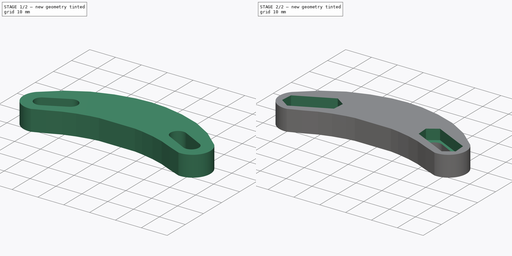
[diagram: build sequence overview — one tinted view per stage of 2, left to right]
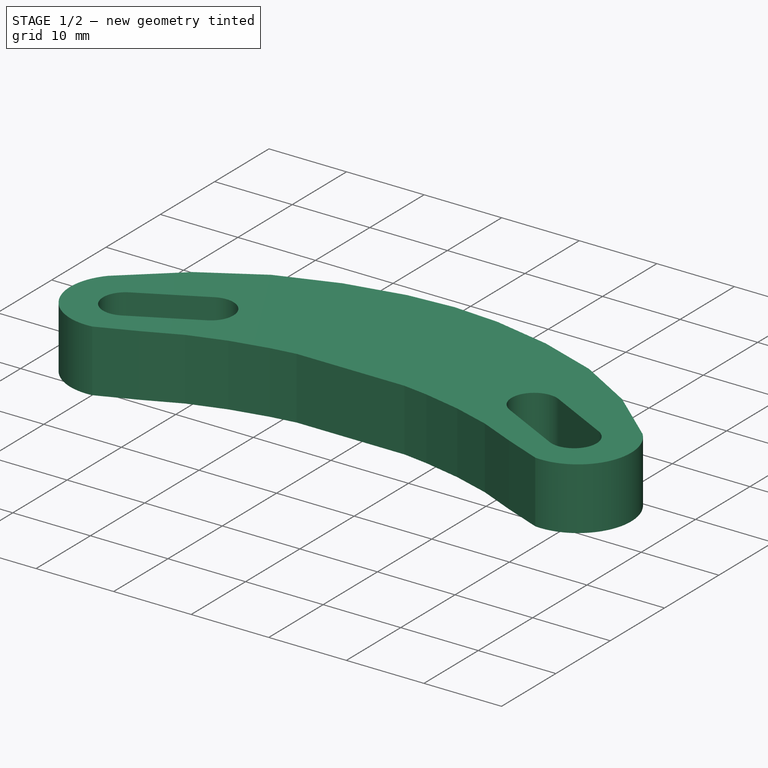
[diagram: stage 1 of 2 — iso view after this stage's code; geometry added in this stage tinted green]
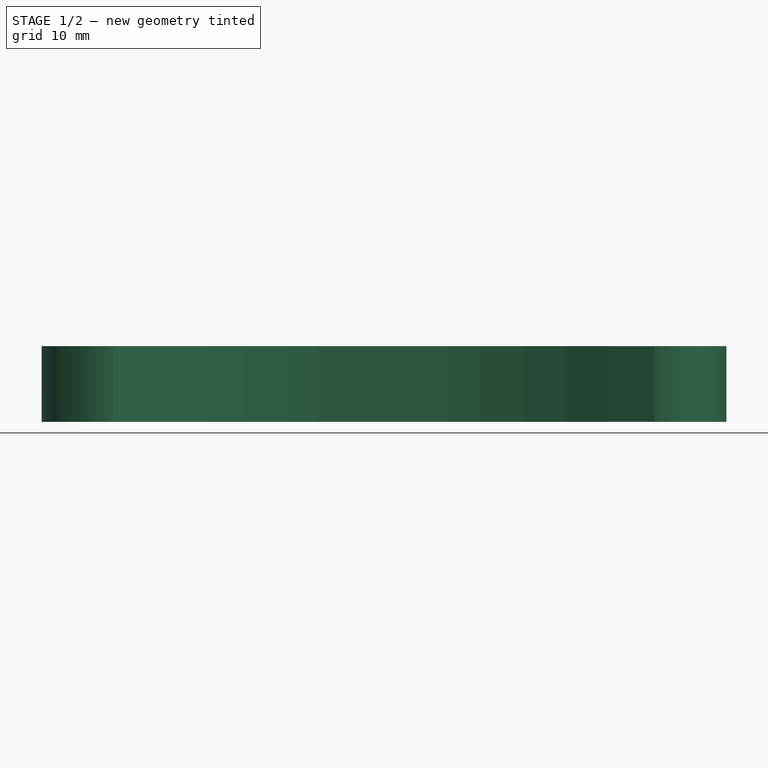
[diagram: stage 1 of 2 — front view after this stage's code; geometry added in this stage tinted green]
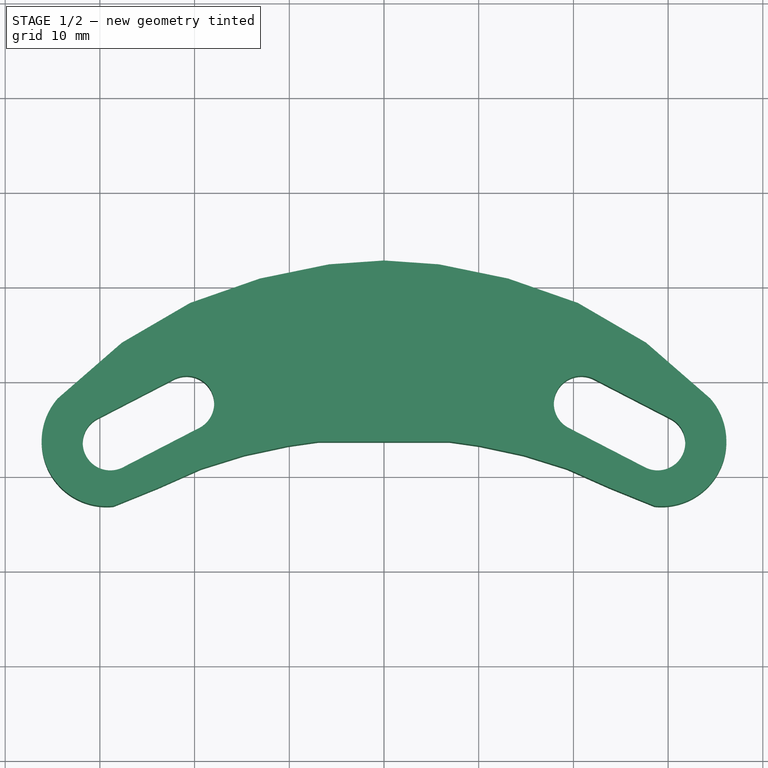
[diagram: stage 1 of 2 — top view after this stage's code; geometry added in this stage tinted green]
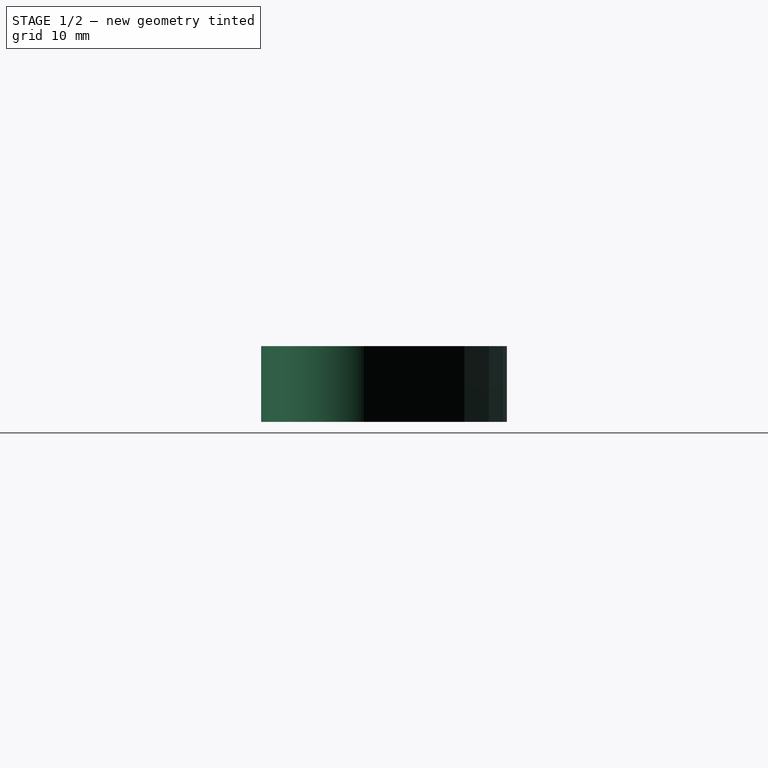
[diagram: stage 1 of 2 — right view after this stage's code; geometry added in this stage tinted green]
FCSTD DOCUMENT  (FreeCAD 0.17R13541 (Git))
Label: FrontLightMagnetBackSide
License: All rights reserved
LicenseURL: http://en.wikipedia.org/wiki/All_rights_reserved
objects: Sketcher::SketchObject×6, Image::ImagePlane×1, PartDesign::Pad×1, PartDesign::Pocket×1, PartDesign::Body×1
note: 11 computed .brp shape members not serialized (recipe doc carries the construction recipe); baked Part::Feature solids carry a one-line shape summary decoded from their .brp

FEATURE [Image::ImagePlane] ImagePlane
  Placement = pos=(0,0,-1) rot=(0,0,1;0rad)
  XSize = 80
  YSize = 32.5234
  expr: YSize = XSize * 87 / 214
FEATURE [Sketcher::SketchObject] Sketch
  MapMode = 5
  Support = -> [XY_Plane]
  sketch-geometry (16):
    g0: ArcOfCircle CenterX=-29.2914 CenterY=-6.3406 CenterZ=0 NormalX=0 NormalY=0 NormalZ=1 AngleXU=0 Radius=6.85887 StartAngle=2.4216 EndAngle=4.81914
    g1: LineSegment StartX=-34.4479 StartY=-1.81802 StartZ=0 EndX=-27.675 EndY=4.0719 EndZ=0
    g2: LineSegment StartX=-27.675 StartY=4.0719 StartZ=0 EndX=-20.4785 EndY=8.26511 EndZ=0
    g3: LineSegment StartX=-20.4785 StartY=8.26511 StartZ=0 EndX=-13.1121 EndY=10.8434 EndZ=0
    g4: LineSegment StartX=-13.1121 StartY=10.8434 StartZ=0 EndX=-5.80231 EndY=12.345 EndZ=0
    g5: LineSegment StartX=-5.80231 StartY=12.345 StartZ=0 EndX=0 EndY=12.7514 EndZ=0
    g6: LineSegment StartX=-28.5605 StartY=-13.1604 StartZ=0 EndX=-23.8379 EndY=-11.2462 EndZ=0
    g7: LineSegment StartX=-23.8379 StartY=-11.2462 StartZ=0 EndX=-19.3047 EndY=-9.23463 EndZ=0
    g8: LineSegment StartX=-19.3047 StartY=-9.23463 StartZ=0 EndX=-14.7432 EndY=-7.818 EndZ=0
    g9: LineSegment StartX=-14.7432 StartY=-7.818 StartZ=0 EndX=-10.0966 EndY=-6.82637 EndZ=0
    g10: LineSegment StartX=-10.0966 StartY=-6.82637 StartZ=0 EndX=-6.95172 EndY=-6.37305 EndZ=0
    g11: LineSegment StartX=-6.95172 StartY=-6.37305 StartZ=0 EndX=0 EndY=-6.37305 EndZ=0
    g12: ArcOfCircle CenterX=-20.8441 CenterY=-2.3434 CenterZ=0 NormalX=0 NormalY=0 NormalZ=1 AngleXU=0 Radius=2.91319 StartAngle=5.1892 EndAngle=8.33079
    g13: ArcOfCircle CenterX=-28.8963 CenterY=-6.50281 CenterZ=0 NormalX=0 NormalY=0 NormalZ=1 AngleXU=0 Radius=2.91319 StartAngle=2.0476 EndAngle=5.1892
    g14: LineSegment StartX=-22.1811 StartY=0.244864 StartZ=0 EndX=-30.2333 EndY=-3.91455 EndZ=0
    g15: LineSegment StartX=-19.5071 StartY=-4.93166 StartZ=0 EndX=-27.5593 EndY=-9.09107 EndZ=0
  constraints (19):
    c: Coincident(g0,g1)
    c: Coincident(g1,g2)
    c: Coincident(g2,g3)
    c: Coincident(g3,g4)
    c: Coincident(g4,g5)
    c: Coincident(g0,g6)
    c: Coincident(g6,g7)
    c: Coincident(g7,g8)
    c: Coincident(g8,g9)
    c: Coincident(g9,g10)
    c: Coincident(g10,g11)
    c: PointOnObject(g11,g-2)
    c: Horizontal(g11)
    c: PointOnObject(g5,g-2)
    c: Tangent(g12,g15) = 1.5708
    c: Tangent(g12,g14) = -1.5708
    c: Tangent(g14,g13) = -1.5708
    c: Tangent(g15,g13) = 1.5708
    c: Equal(g12,g13)
FEATURE [Sketcher::SketchObject] MirroredSketch
  sketch-geometry (16):
    g0: ArcOfCircle CenterX=29.2914 CenterY=-6.3406 CenterZ=0 NormalX=0 NormalY=0 NormalZ=1 AngleXU=0 Radius=6.85887 StartAngle=4.60564 EndAngle=7.00317
    g1: LineSegment StartX=34.4479 StartY=-1.81802 StartZ=0 EndX=27.675 EndY=4.0719 EndZ=0
    g2: LineSegment StartX=27.675 StartY=4.0719 StartZ=0 EndX=20.4785 EndY=8.26511 EndZ=0
    g3: LineSegment StartX=20.4785 StartY=8.26511 StartZ=0 EndX=13.1121 EndY=10.8434 EndZ=0
    g4: LineSegment StartX=13.1121 StartY=10.8434 StartZ=0 EndX=5.80231 EndY=12.345 EndZ=0
    g5: LineSegment StartX=5.80231 StartY=12.345 StartZ=0 EndX=0 EndY=12.7514 EndZ=0
    g6: LineSegment StartX=28.5605 StartY=-13.1604 StartZ=0 EndX=23.8379 EndY=-11.2462 EndZ=0
    g7: LineSegment StartX=23.8379 StartY=-11.2462 StartZ=0 EndX=19.3047 EndY=-9.23463 EndZ=0
    g8: LineSegment StartX=19.3047 StartY=-9.23463 StartZ=0 EndX=14.7432 EndY=-7.818 EndZ=0
    g9: LineSegment StartX=14.7432 StartY=-7.818 StartZ=0 EndX=10.0966 EndY=-6.82637 EndZ=0
    g10: LineSegment StartX=10.0966 StartY=-6.82637 StartZ=0 EndX=6.95172 EndY=-6.37305 EndZ=0
    g11: LineSegment StartX=6.95172 StartY=-6.37305 StartZ=0 EndX=0 EndY=-6.37305 EndZ=0
    g12: ArcOfCircle CenterX=20.8441 CenterY=-2.3434 CenterZ=0 NormalX=0 NormalY=0 NormalZ=1 AngleXU=0 Radius=2.91319 StartAngle=1.09399 EndAngle=4.23558
    g13: ArcOfCircle CenterX=28.8963 CenterY=-6.50281 CenterZ=0 NormalX=0 NormalY=0 NormalZ=1 AngleXU=0 Radius=2.91319 StartAngle=4.23558 EndAngle=7.37717
    g14: LineSegment StartX=22.1811 StartY=0.244864 StartZ=0 EndX=30.2333 EndY=-3.91455 EndZ=0
    g15: LineSegment StartX=19.5071 StartY=-4.93166 StartZ=0 EndX=27.5593 EndY=-9.09107 EndZ=0
  constraints (17):
    c: Coincident(g0,g1)
    c: Coincident(g1,g2)
    c: Coincident(g2,g3)
    c: Coincident(g3,g4)
    c: Coincident(g4,g5)
    c: Coincident(g0,g6)
    c: Coincident(g6,g7)
    c: Coincident(g7,g8)
    c: Coincident(g8,g9)
    c: Coincident(g9,g10)
    c: Coincident(g10,g11)
    c: Horizontal(g11)
    c: Tangent(g12,g15) = -1.5708
    c: Tangent(g12,g14) = 1.5708
    c: Tangent(g14,g13) = 1.5708
    c: Tangent(g15,g13) = -1.5708
    c: Equal(g12,g13)
FEATURE [Sketcher::SketchObject] Sketch001
  sketch-geometry (32):
    g0: ArcOfCircle CenterX=-29.2914 CenterY=-6.3406 CenterZ=0 NormalX=0 NormalY=0 NormalZ=1 AngleXU=0 Radius=6.85887 StartAngle=2.4216 EndAngle=4.81914
    g1: LineSegment StartX=-34.4479 StartY=-1.81802 StartZ=0 EndX=-27.675 EndY=4.0719 EndZ=0
    g2: LineSegment StartX=-27.675 StartY=4.0719 StartZ=0 EndX=-20.4785 EndY=8.26511 EndZ=0
    g3: LineSegment StartX=-20.4785 StartY=8.26511 StartZ=0 EndX=-13.1121 EndY=10.8434 EndZ=0
    g4: LineSegment StartX=-13.1121 StartY=10.8434 StartZ=0 EndX=-5.80231 EndY=12.345 EndZ=0
    g5: LineSegment StartX=-5.80231 StartY=12.345 StartZ=0 EndX=0 EndY=12.7514 EndZ=0
    g6: LineSegment StartX=-28.5605 StartY=-13.1604 StartZ=0 EndX=-23.8379 EndY=-11.2462 EndZ=0
    g7: LineSegment StartX=-23.8379 StartY=-11.2462 StartZ=0 EndX=-19.3047 EndY=-9.23463 EndZ=0
    g8: LineSegment StartX=-19.3047 StartY=-9.23463 StartZ=0 EndX=-14.7432 EndY=-7.818 EndZ=0
    g9: LineSegment StartX=-14.7432 StartY=-7.818 StartZ=0 EndX=-10.0966 EndY=-6.82637 EndZ=0
    g10: LineSegment StartX=-10.0966 StartY=-6.82637 StartZ=0 EndX=-6.95172 EndY=-6.37305 EndZ=0
    g11: LineSegment StartX=-6.95172 StartY=-6.37305 StartZ=0 EndX=0 EndY=-6.37305 EndZ=0
    g12: ArcOfCircle CenterX=-20.8441 CenterY=-2.3434 CenterZ=0 NormalX=0 NormalY=0 NormalZ=1 AngleXU=0 Radius=2.91319 StartAngle=5.1892 EndAngle=8.33079
    g13: ArcOfCircle CenterX=-28.8963 CenterY=-6.50281 CenterZ=0 NormalX=0 NormalY=0 NormalZ=1 AngleXU=0 Radius=2.91319 StartAngle=2.0476 EndAngle=5.1892
    g14: LineSegment StartX=-22.1811 StartY=0.244864 StartZ=0 EndX=-30.2333 EndY=-3.91455 EndZ=0
    g15: LineSegment StartX=-19.5071 StartY=-4.93166 StartZ=0 EndX=-27.5593 EndY=-9.09107 EndZ=0
    g16: ArcOfCircle CenterX=29.2914 CenterY=-6.3406 CenterZ=0 NormalX=0 NormalY=0 NormalZ=1 AngleXU=0 Radius=6.85887 StartAngle=4.60564 EndAngle=7.00317
    g17: LineSegment StartX=34.4479 StartY=-1.81802 StartZ=0 EndX=27.675 EndY=4.0719 EndZ=0
    g18: LineSegment StartX=27.675 StartY=4.0719 StartZ=0 EndX=20.4785 EndY=8.26511 EndZ=0
    g19: LineSegment StartX=20.4785 StartY=8.26511 StartZ=0 EndX=13.1121 EndY=10.8434 EndZ=0
    g20: LineSegment StartX=13.1121 StartY=10.8434 StartZ=0 EndX=5.80231 EndY=12.345 EndZ=0
    g21: LineSegment StartX=5.80231 StartY=12.345 StartZ=0 EndX=0 EndY=12.7514 EndZ=0
    g22: LineSegment StartX=28.5605 StartY=-13.1604 StartZ=0 EndX=23.8379 EndY=-11.2462 EndZ=0
    g23: LineSegment StartX=23.8379 StartY=-11.2462 StartZ=0 EndX=19.3047 EndY=-9.23463 EndZ=0
    g24: LineSegment StartX=19.3047 StartY=-9.23463 StartZ=0 EndX=14.7432 EndY=-7.818 EndZ=0
    g25: LineSegment StartX=14.7432 StartY=-7.818 StartZ=0 EndX=10.0966 EndY=-6.82637 EndZ=0
    g26: LineSegment StartX=10.0966 StartY=-6.82637 StartZ=0 EndX=6.95172 EndY=-6.37305 EndZ=0
    g27: LineSegment StartX=6.95172 StartY=-6.37305 StartZ=0 EndX=0 EndY=-6.37305 EndZ=0
    g28: ArcOfCircle CenterX=20.8441 CenterY=-2.3434 CenterZ=0 NormalX=0 NormalY=0 NormalZ=1 AngleXU=0 Radius=2.91319 StartAngle=1.09399 EndAngle=4.23558
    g29: ArcOfCircle CenterX=28.8963 CenterY=-6.50281 CenterZ=0 NormalX=0 NormalY=0 NormalZ=1 AngleXU=0 Radius=2.91319 StartAngle=4.23558 EndAngle=7.37717
    g30: LineSegment StartX=22.1811 StartY=0.244864 StartZ=0 EndX=30.2333 EndY=-3.91455 EndZ=0
    g31: LineSegment StartX=19.5071 StartY=-4.93166 StartZ=0 EndX=27.5593 EndY=-9.09107 EndZ=0
  constraints (36):
    c: Coincident(g0,g1)
    c: Coincident(g1,g2)
    c: Coincident(g2,g3)
    c: Coincident(g3,g4)
    c: Coincident(g4,g5)
    c: Coincident(g0,g6)
    c: Coincident(g6,g7)
    c: Coincident(g7,g8)
    c: Coincident(g8,g9)
    c: Coincident(g9,g10)
    c: Coincident(g10,g11)
    c: PointOnObject(g11,g-2)
    c: Horizontal(g11)
    c: PointOnObject(g5,g-2)
    c: Tangent(g12,g15) = 1.5708
    c: Tangent(g12,g14) = -1.5708
    c: Tangent(g14,g13) = -1.5708
    c: Tangent(g15,g13) = 1.5708
    c: Equal(g12,g13)
    c: Coincident(g16,g17)
    c: Coincident(g17,g18)
    c: Coincident(g18,g19)
    c: Coincident(g19,g20)
    c: Coincident(g20,g21)
    c: Coincident(g16,g22)
    c: Coincident(g22,g23)
    c: Coincident(g23,g24)
    c: Coincident(g24,g25)
    c: Coincident(g25,g26)
    c: Coincident(g26,g27)
    c: Horizontal(g27)
    c: Tangent(g28,g31) = -1.5708
    c: Tangent(g28,g30) = 1.5708
    c: Tangent(g30,g29) = 1.5708
    c: Tangent(g31,g29) = -1.5708
    c: Equal(g28,g29)
FEATURE [PartDesign::Pad] Pad
  Length = 8
  Length2 = 100
  Profile = -> Sketch001
  Type = 0
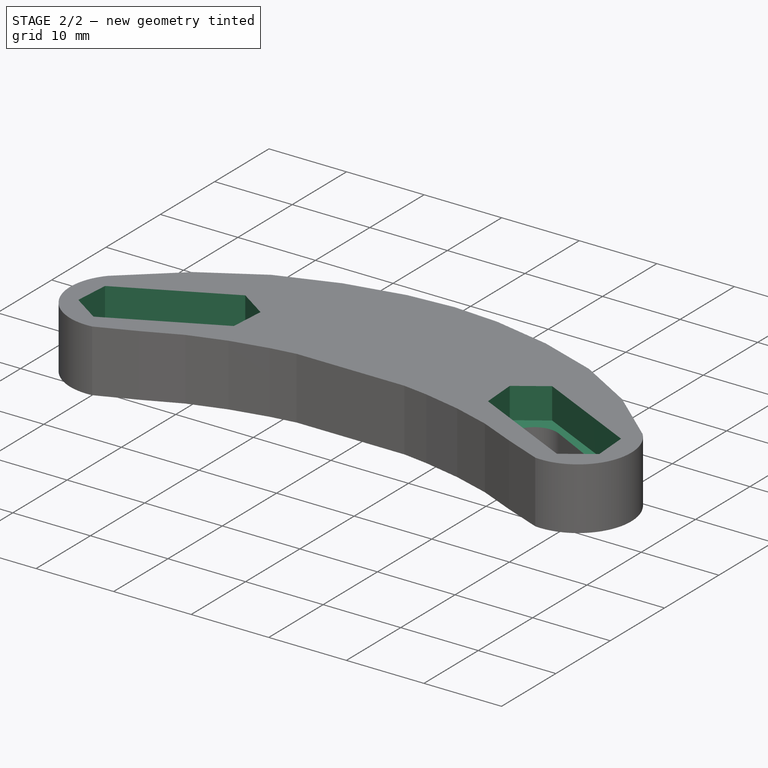
[diagram: stage 2 of 2 — iso view after this stage's code; geometry added in this stage tinted green]
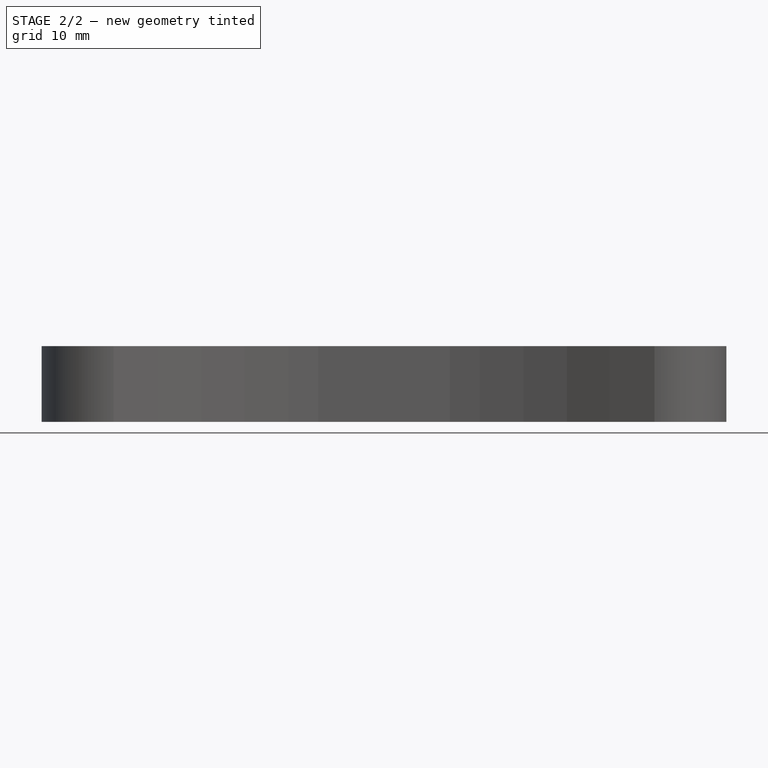
[diagram: stage 2 of 2 — front view after this stage's code; geometry added in this stage tinted green]
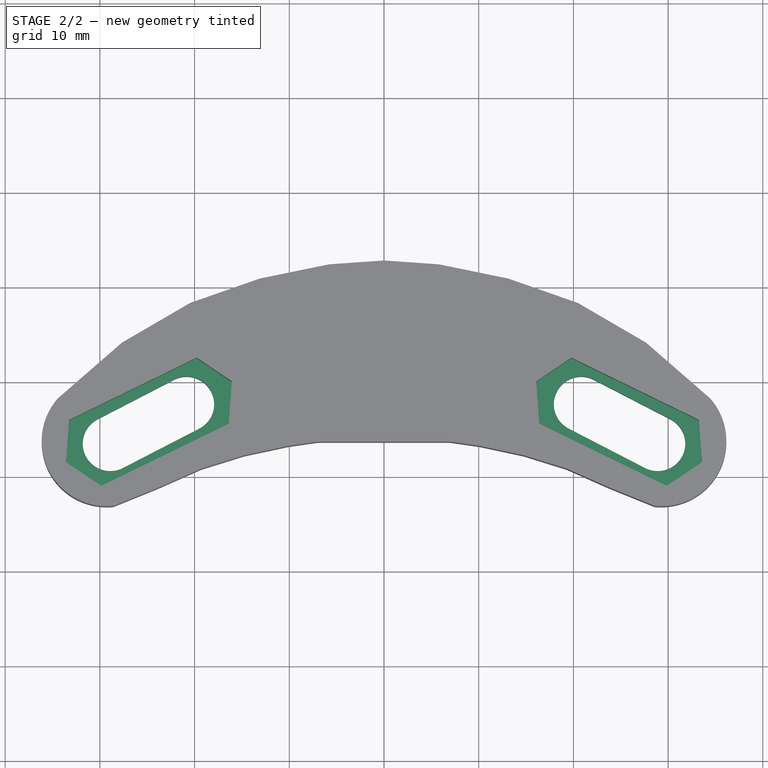
[diagram: stage 2 of 2 — top view after this stage's code; geometry added in this stage tinted green]
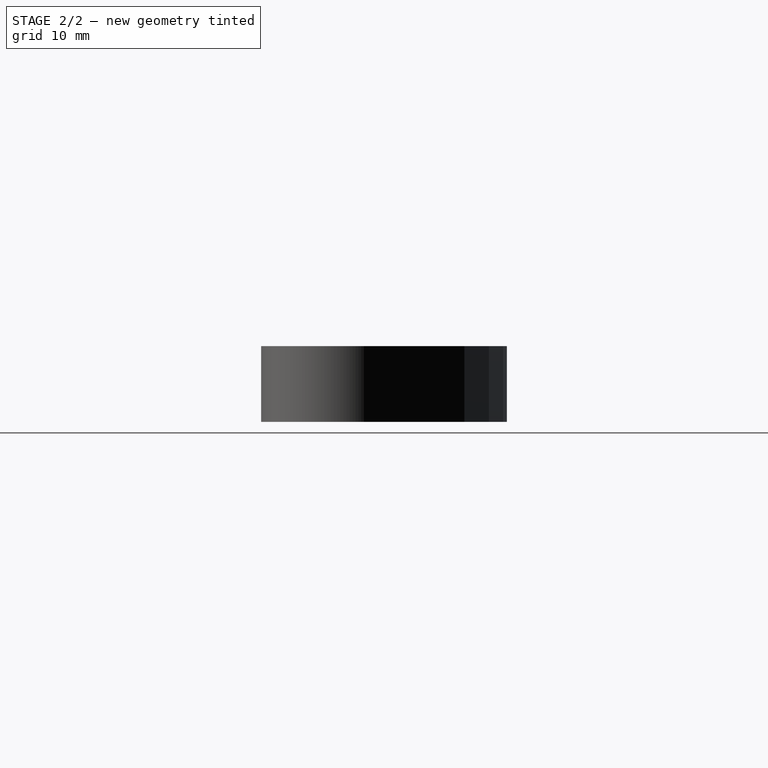
[diagram: stage 2 of 2 — right view after this stage's code; geometry added in this stage tinted green]
FEATURE [Sketcher::SketchObject] Sketch002
  MapMode = 5
  Placement = pos=(0,0,8) rot=(0,0,1;0rad)
  Support = -> [Pad]
  sketch-geometry (6):
    g0: LineSegment StartX=-33.2597 StartY=-4.08781 StartZ=0 EndX=-19.7778 EndY=2.48776 EndZ=0
    g1: LineSegment StartX=-16.0683 StartY=-0.01433 StartZ=0 EndX=-16.3804 EndY=-4.4779 EndZ=0
    g2: LineSegment StartX=-16.3804 StartY=-4.4779 StartZ=0 EndX=-29.8623 EndY=-11.0535 EndZ=0
    g3: LineSegment StartX=-29.8623 StartY=-11.0535 StartZ=0 EndX=-33.5718 EndY=-8.55137 EndZ=0
    g4: LineSegment StartX=-16.0683 StartY=-0.01433 StartZ=0 EndX=-19.7778 EndY=2.48776 EndZ=0
    g5: LineSegment StartX=-33.5718 StartY=-8.55137 StartZ=0 EndX=-33.2597 EndY=-4.08781 EndZ=0
  constraints (17):
    c: Coincident(g1,g2)
    c: Coincident(g2,g3)
    c: Parallel(g0,g2)
    c: Distance(g0,g1) = 7.75  'nutSlotWidth'
    c: Coincident(g1,g4)
    c: Coincident(g3,g5)
    c: Distance(g0) = 15
    c: Equal(g0,g2)
    c: Coincident(g5,g0)
    c: Coincident(g0,g4)
    c: Angle(g0,g4) = 2.0944
    c: Angle(g5,g0) = 2.0944
    c: Angle(g2,g3) = 2.0944
    c: Equal(g4,g1)
    c: Equal(g1,g5)
    c: Equal(g5,g3)
    c: Angle(g0,g-2) = 1.11701
FEATURE [Sketcher::SketchObject] MirroredSketch001
  Placement = pos=(0,0,8) rot=(0,0,1;0rad)
  sketch-geometry (6):
    g0: LineSegment StartX=33.2597 StartY=-4.08781 StartZ=0 EndX=19.7778 EndY=2.48776 EndZ=0
    g1: LineSegment StartX=16.0683 StartY=-0.01433 StartZ=0 EndX=16.3804 EndY=-4.4779 EndZ=0
    g2: LineSegment StartX=16.3804 StartY=-4.4779 StartZ=0 EndX=29.8623 EndY=-11.0535 EndZ=0
    g3: LineSegment StartX=29.8623 StartY=-11.0535 StartZ=0 EndX=33.5718 EndY=-8.55137 EndZ=0
    g4: LineSegment StartX=16.0683 StartY=-0.01433 StartZ=0 EndX=19.7778 EndY=2.48776 EndZ=0
    g5: LineSegment StartX=33.5718 StartY=-8.55137 StartZ=0 EndX=33.2597 EndY=-4.08781 EndZ=0
  constraints (16):
    c: Coincident(g1,g2)
    c: Coincident(g2,g3)
    c: Parallel(g0,g2)
    c: Distance(g0,g1) = 7.75  'nutSlotWidth'
    c: Coincident(g1,g4)
    c: Coincident(g3,g5)
    c: Distance(g0) = 15
    c: Equal(g0,g2)
    c: Coincident(g5,g0)
    c: Coincident(g0,g4)
    c: Angle(g0,g4) = -2.0944
    c: Angle(g5,g0) = -2.0944
    c: Angle(g2,g3) = -2.0944
    c: Equal(g4,g1)
    c: Equal(g1,g5)
    c: Equal(g5,g3)
FEATURE [Sketcher::SketchObject] Sketch003
  Placement = pos=(0,0,8) rot=(0,0,1;0rad)
  sketch-geometry (12):
    g0: LineSegment StartX=33.2597 StartY=-4.08781 StartZ=0 EndX=19.7778 EndY=2.48776 EndZ=0
    g1: LineSegment StartX=16.0683 StartY=-0.01433 StartZ=0 EndX=16.3804 EndY=-4.4779 EndZ=0
    g2: LineSegment StartX=16.3804 StartY=-4.4779 StartZ=0 EndX=29.8623 EndY=-11.0535 EndZ=0
    g3: LineSegment StartX=29.8623 StartY=-11.0535 StartZ=0 EndX=33.5718 EndY=-8.55137 EndZ=0
    g4: LineSegment StartX=16.0683 StartY=-0.01433 StartZ=0 EndX=19.7778 EndY=2.48776 EndZ=0
    g5: LineSegment StartX=33.5718 StartY=-8.55137 StartZ=0 EndX=33.2597 EndY=-4.08781 EndZ=0
    g6: LineSegment StartX=-33.2597 StartY=-4.08781 StartZ=0 EndX=-19.7778 EndY=2.48776 EndZ=0
    g7: LineSegment StartX=-16.0683 StartY=-0.01433 StartZ=0 EndX=-16.3804 EndY=-4.4779 EndZ=0
    g8: LineSegment StartX=-16.3804 StartY=-4.4779 StartZ=0 EndX=-29.8623 EndY=-11.0535 EndZ=0
    g9: LineSegment StartX=-29.8623 StartY=-11.0535 StartZ=0 EndX=-33.5718 EndY=-8.55137 EndZ=0
    g10: LineSegment StartX=-16.0683 StartY=-0.01433 StartZ=0 EndX=-19.7778 EndY=2.48776 EndZ=0
    g11: LineSegment StartX=-33.5718 StartY=-8.55137 StartZ=0 EndX=-33.2597 EndY=-4.08781 EndZ=0
  constraints (33):
    c: Coincident(g1,g2)
    c: Coincident(g2,g3)
    c: Parallel(g0,g2)
    c: Distance(g0,g1) = 7.75  'nutSlotWidth'
    c: Coincident(g1,g4)
    c: Coincident(g3,g5)
    c: Distance(g0) = 15
    c: Equal(g0,g2)
    c: Coincident(g5,g0)
    c: Coincident(g0,g4)
    c: Angle(g0,g4) = -2.0944
    c: Angle(g5,g0) = -2.0944
    c: Angle(g2,g3) = -2.0944
    c: Equal(g4,g1)
    c: Equal(g1,g5)
    c: Equal(g5,g3)
    c: Coincident(g7,g8)
    c: Coincident(g8,g9)
    c: Parallel(g6,g8)
    c: Distance(g6,g7) = 7.75  'nutSlotWidth'
    c: Coincident(g7,g10)
    c: Coincident(g9,g11)
    c: Distance(g6) = 15
    c: Equal(g6,g8)
    c: Coincident(g11,g6)
    c: Coincident(g6,g10)
    c: Angle(g6,g10) = 2.0944
    c: Angle(g11,g6) = 2.0944
    c: Angle(g8,g9) = 2.0944
    c: Equal(g10,g7)
    c: Equal(g7,g11)
    c: Equal(g11,g9)
    c: Angle(g6,g-2) = 1.11701
FEATURE [PartDesign::Pocket] Pocket
  BaseFeature = -> Pad
  Length = 4
  Length2 = 100
  Profile = -> Sketch003
  Type = 0
FEATURE [PartDesign::Body] Body
  Group = -> [Sketch,MirroredSketch,Sketch001,Pad,Sketch002,MirroredSketch001,Sketch003,Pocket]
  Origin = -> Origin
  Tip = -> Pocket
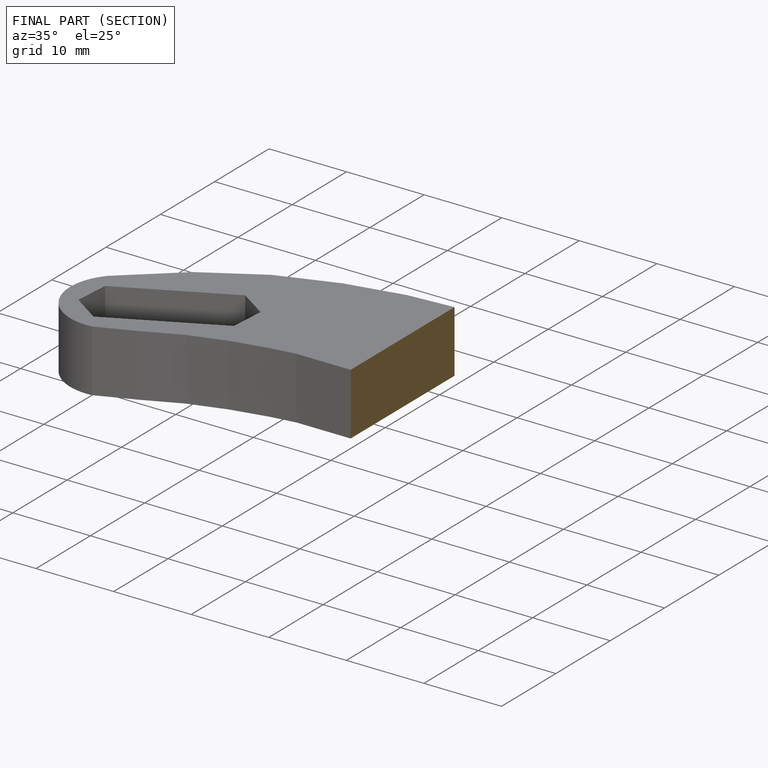
[diagram: finished part — half-section view (interior)]
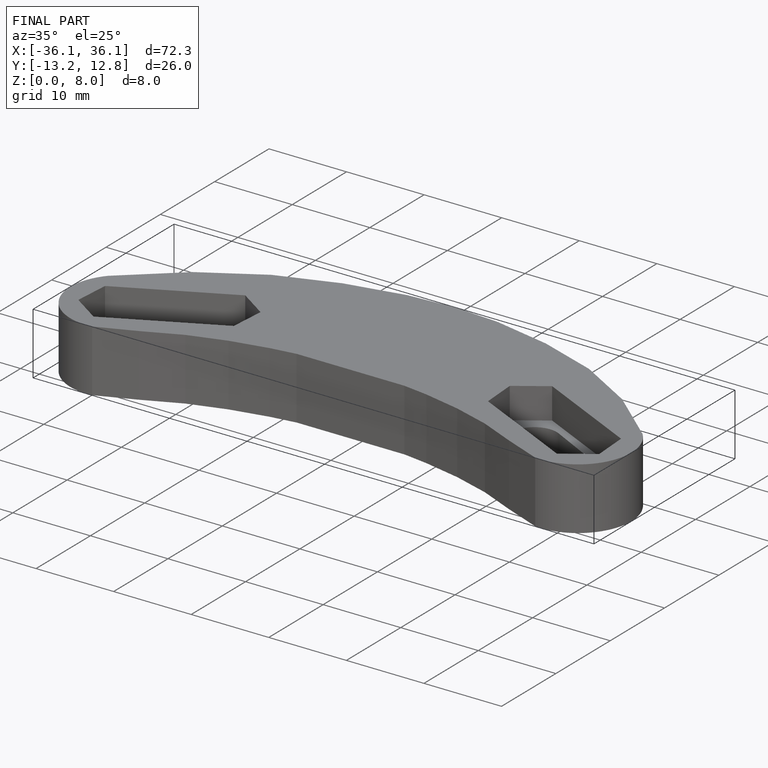
[diagram: finished part — iso view with bounding-box wireframe]
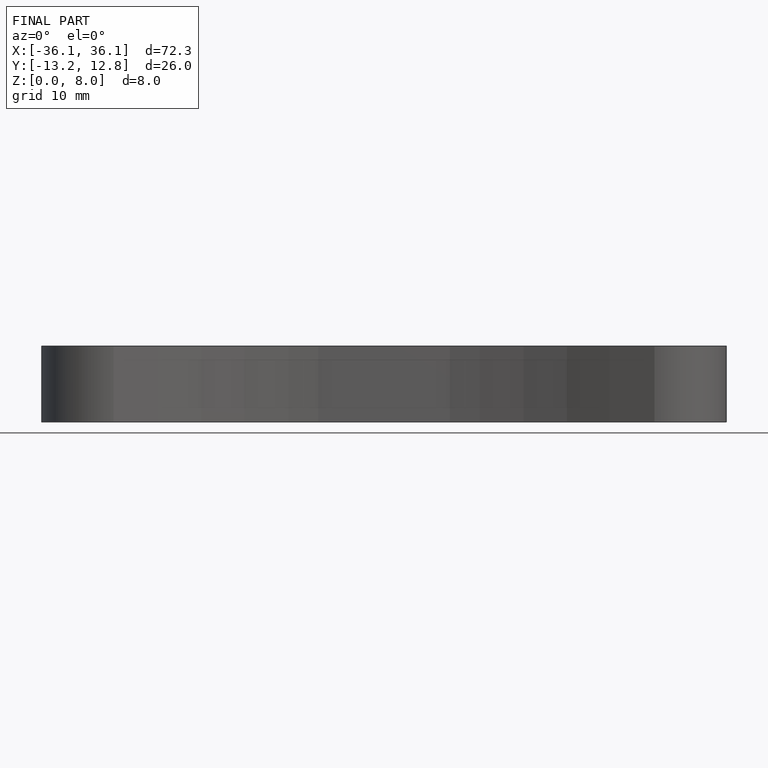
[diagram: finished part — front view with bounding-box wireframe]
